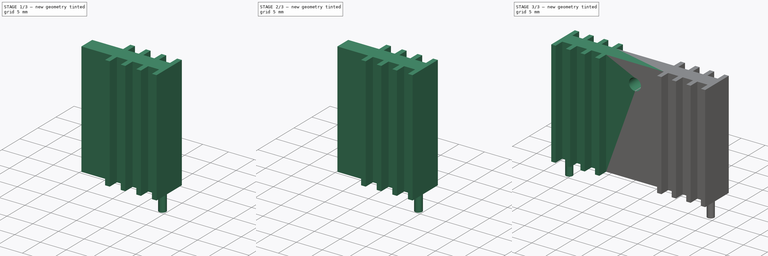
[diagram: build sequence overview — one tinted view per stage of 3, left to right]
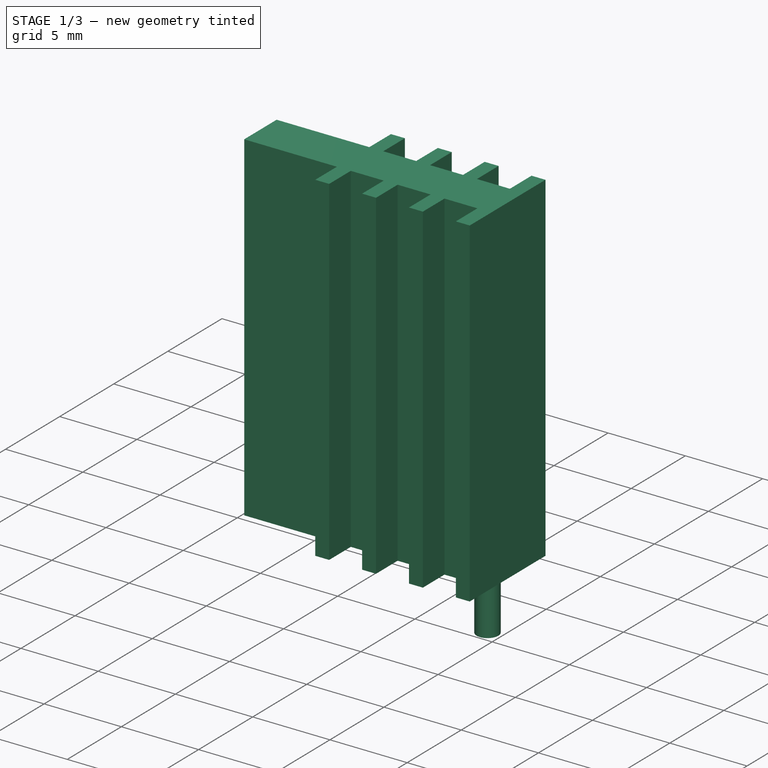
[diagram: stage 1 of 3 — iso view after this stage's code; geometry added in this stage tinted green]
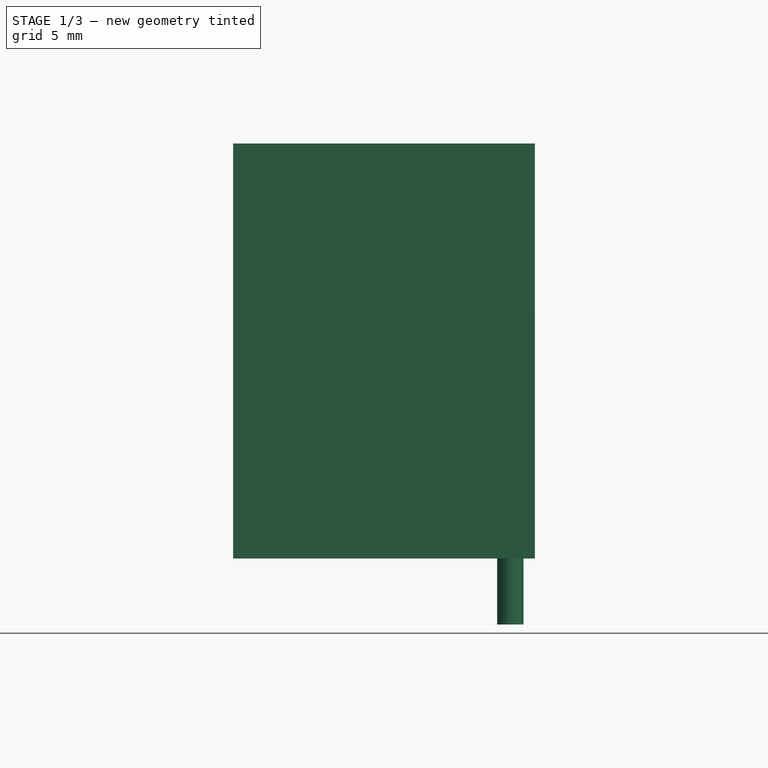
[diagram: stage 1 of 3 — front view after this stage's code; geometry added in this stage tinted green]
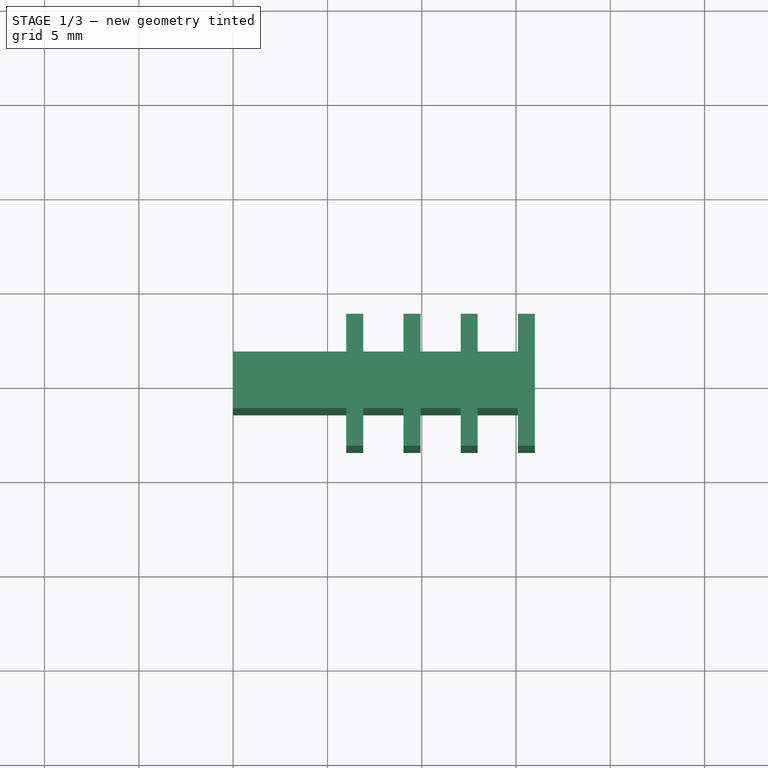
[diagram: stage 1 of 3 — top view after this stage's code; geometry added in this stage tinted green]
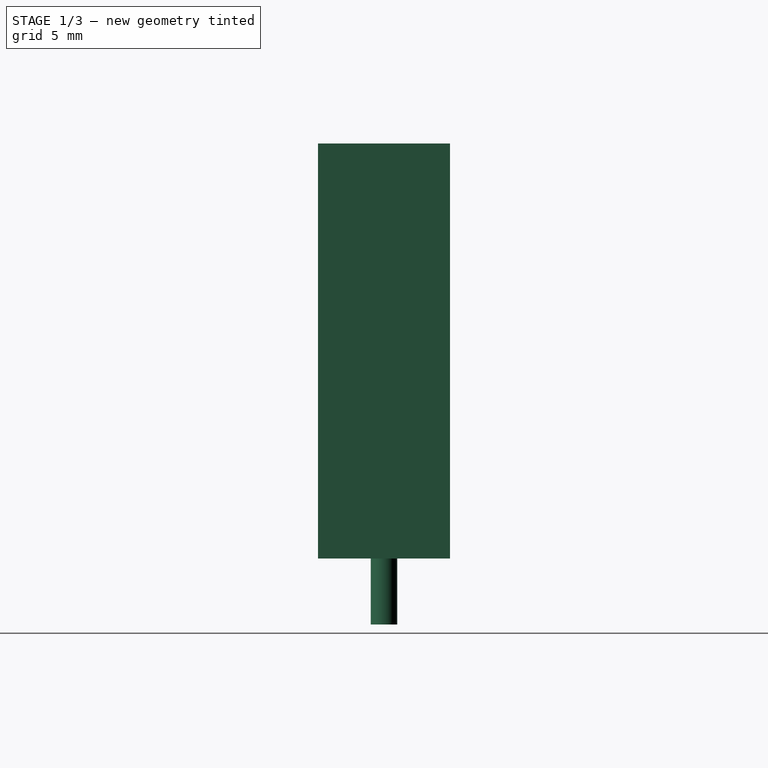
[diagram: stage 1 of 3 — right view after this stage's code; geometry added in this stage tinted green]
FCSTD DOCUMENT  (FreeCAD 1.0R39319 (Git))
Label: heatsink
License: All rights reserved
LicenseURL: https://en.wikipedia.org/wiki/All_rights_reserved
objects: Sketcher::SketchObject×3, PartDesign::Pad×2, PartDesign::Body×2, PartDesign::Boolean×1, PartDesign::Mirrored×1, PartDesign::Hole×1
note: 21 computed .brp shape members not serialized (recipe doc carries the construction recipe); baked Part::Feature solids carry a one-line shape summary decoded from their .brp

FEATURE [Sketcher::SketchObject] Sketch001
  ArcFitTolerance = 1e-06
  AttachmentSupport = -> [XY_Plane001]
  FullyConstrained = false
  MakeInternals = false
  MapMode = 5
  sketch-geometry (30):
    g0: LineSegment StartX=0 StartY=1.5 StartZ=0 EndX=0 EndY=-1.5 EndZ=0
    g1: LineSegment StartX=0 StartY=-1.5 StartZ=0 EndX=16 EndY=-1.5 EndZ=0
    g2: LineSegment StartX=16 StartY=-1.5 StartZ=0 EndX=16 EndY=1.5 EndZ=0
    g3: LineSegment StartX=16 StartY=1.5 StartZ=0 EndX=0 EndY=1.5 EndZ=0
    g4: LineSegment StartX=15.1 StartY=-3.5 StartZ=0 EndX=16 EndY=-3.5 EndZ=0
    g5: LineSegment StartX=16 StartY=-3.5 StartZ=0 EndX=16 EndY=3.5 EndZ=0
    g6: LineSegment StartX=16 StartY=3.5 StartZ=0 EndX=15.1 EndY=3.5 EndZ=0
    g7: LineSegment StartX=15.1 StartY=3.5 StartZ=0 EndX=15.1 EndY=-3.5 EndZ=0
    g8: GeomPoint [constr] X=15.55 Y=0 Z=0
    g9: LineSegment StartX=12.9667 StartY=-3.5 StartZ=0 EndX=12.9667 EndY=3.5 EndZ=0
    g10: LineSegment StartX=12.9667 StartY=3.5 StartZ=0 EndX=12.0667 EndY=3.5 EndZ=0
    g11: LineSegment StartX=12.0667 StartY=3.5 StartZ=0 EndX=12.0667 EndY=-3.5 EndZ=0
    g12: LineSegment StartX=12.0667 StartY=-3.5 StartZ=0 EndX=12.9667 EndY=-3.5 EndZ=0
    g13: GeomPoint [constr] X=12.5167 Y=0 Z=0
    g14: LineSegment StartX=6 StartY=-3.5 StartZ=0 EndX=6.9 EndY=-3.5 EndZ=0
    g15: LineSegment StartX=6.9 StartY=-3.5 StartZ=0 EndX=6.9 EndY=3.5 EndZ=0
    g16: LineSegment StartX=6.9 StartY=3.5 StartZ=0 EndX=6 EndY=3.5 EndZ=0
    g17: LineSegment StartX=6 StartY=3.5 StartZ=0 EndX=6 EndY=-3.5 EndZ=0
    g18: GeomPoint [constr] X=6.45 Y=0 Z=0
    g19: LineSegment StartX=9.03333 StartY=-3.5 StartZ=0 EndX=9.93333 EndY=-3.5 EndZ=0
    g20: LineSegment StartX=9.93333 StartY=-3.5 StartZ=0 EndX=9.93333 EndY=3.5 EndZ=0
    g21: LineSegment StartX=9.93333 StartY=3.5 StartZ=0 EndX=9.03333 EndY=3.5 EndZ=0
    g22: LineSegment StartX=9.03333 StartY=3.5 StartZ=0 EndX=9.03333 EndY=-3.5 EndZ=0
    g23: GeomPoint [constr] X=9.48333 Y=0 Z=0
    g24: LineSegment [constr] StartX=6.9 StartY=3.5 StartZ=0 EndX=9.03333 EndY=3.5 EndZ=0
    g25: LineSegment [constr] StartX=9.93333 StartY=3.5 StartZ=0 EndX=12.0667 EndY=3.5 EndZ=0
    g26: LineSegment [constr] StartX=12.9667 StartY=3.5 StartZ=0 EndX=15.1 EndY=3.5 EndZ=0
    g27: LineSegment [constr] StartX=6 StartY=3.5 StartZ=0 EndX=0 EndY=3.5 EndZ=0
    g28: LineSegment [constr] StartX=1.86262 StartY=1.5 StartZ=0 EndX=1.86262 EndY=0 EndZ=0
    g29: LineSegment [constr] StartX=2.89621 StartY=0 StartZ=0 EndX=2.89621 EndY=-1.5 EndZ=0
  constraints (78):
    c: Coincident(g0,g1)
    c: Coincident(g1,g2)
    c: Coincident(g2,g3)
    c: Coincident(g3,g0)
    c: Vertical(g0)
    c: Vertical(g2)
    c: Horizontal(g1)
    c: Horizontal(g3)
    c: Distance(g0,g2) = 16
    c: Distance(g1,g3) = 3
    c: PointOnObject(g0,g-2)
    c: Coincident(g4,g5)
    c: Coincident(g5,g6)
    c: Coincident(g6,g7)
    c: Coincident(g7,g4)
    c: Horizontal(g4)
    c: Horizontal(g6)
    c: Vertical(g7)
    c: Symmetric(g6,g4,g8)
    c: Distance(g5,g7) = 0.9
    c: Distance(g4,g6) = 7
    c: PointOnObject(g8,g-1)
    c: Tangent(g5,g2)
    c: Coincident(g9,g10)
    c: Coincident(g10,g11)
    c: Coincident(g11,g12)
    c: Coincident(g12,g9)
    c: Vertical(g9)
    c: Vertical(g11)
    c: Horizontal(g10)
    c: Horizontal(g12)
    c: Symmetric(g11,g9,g13)
    c: PointOnObject(g13,g-1)
    c: Equal(g10,g6)
    c: Equal(g9,g7)
    c: Coincident(g14,g15)
    c: Coincident(g15,g16)
    c: Coincident(g16,g17)
    c: Coincident(g17,g14)
    c: Horizontal(g14)
    c: Horizontal(g16)
    c: Vertical(g15)
    c: Vertical(g17)
    c: Symmetric(g16,g14,g18)
    c: PointOnObject(g18,g-1)
    c: Equal(g16,g6)
    c: Coincident(g19,g20)
    c: Coincident(g20,g21)
    c: Coincident(g21,g22)
    c: Coincident(g22,g19)
    c: Horizontal(g19)
    c: Horizontal(g21)
    c: Vertical(g20)
    c: Vertical(g22)
    c: Symmetric(g21,g19,g23)
    c: PointOnObject(g23,g-1)
    c: Equal(g21,g6)
    c: Equal(g20,g7)
    c: Coincident(g24,g15)
    c: Coincident(g24,g21)
    c: Horizontal(g24)
    c: Coincident(g25,g20)
    c: Coincident(g25,g10)
    c: Coincident(g26,g9)
    c: Coincident(g26,g6)
    c: Equal(g26,g25)
    c: Equal(g25,g24)
    c: Coincident(g27,g16)
    c: PointOnObject(g27,g-2)
    c: Horizontal(g27)
    c: DistanceX(g27,g27) = 6
    c: PointOnObject(g28,g3)
    c: PointOnObject(g28,g-1)
    c: Vertical(g28)
    c: PointOnObject(g29,g-1)
    c: PointOnObject(g29,g1)
    c: Vertical(g29)
    c: Equal(g28,g29)
FEATURE [PartDesign::Pad] Pad  label="Body"
  Direction = (0,0,1)
  Length = 22
  Length2 = 10
  Profile = -> Sketch001
  ReferenceAxis = -> Sketch001 [N_Axis]
  Refine = true
  Suppressed = false
  Type = 0
FEATURE [PartDesign::Body] Body001
  AllowCompound = false
  Group = -> [Sketch001,Pad]
  Origin = -> Origin001
  Tip = -> Pad
FEATURE [Sketcher::SketchObject] Sketch
  ArcFitTolerance = 1e-06
  AttachmentSupport = -> [XY_Plane002]
  FullyConstrained = true
  MakeInternals = false
  MapMode = 5
  sketch-geometry (1):
    g0: Circle CenterX=14.7 CenterY=0 CenterZ=0 NormalX=0 NormalY=0 NormalZ=1 AngleXU=0 Radius=0.7
  constraints (3):
    c: Diameter(g0) = 1.4
    c: PointOnObject(g0,g-1)
    c: Distance(g0,g-2) = 14.7
FEATURE [PartDesign::Pad] Pad001
  Direction = (0,0,1)
  Length = 3.5
  Length2 = 10
  Profile = -> Sketch
  ReferenceAxis = -> Sketch [N_Axis]
  Refine = true
  Reversed = true
  Suppressed = false
  Type = 0
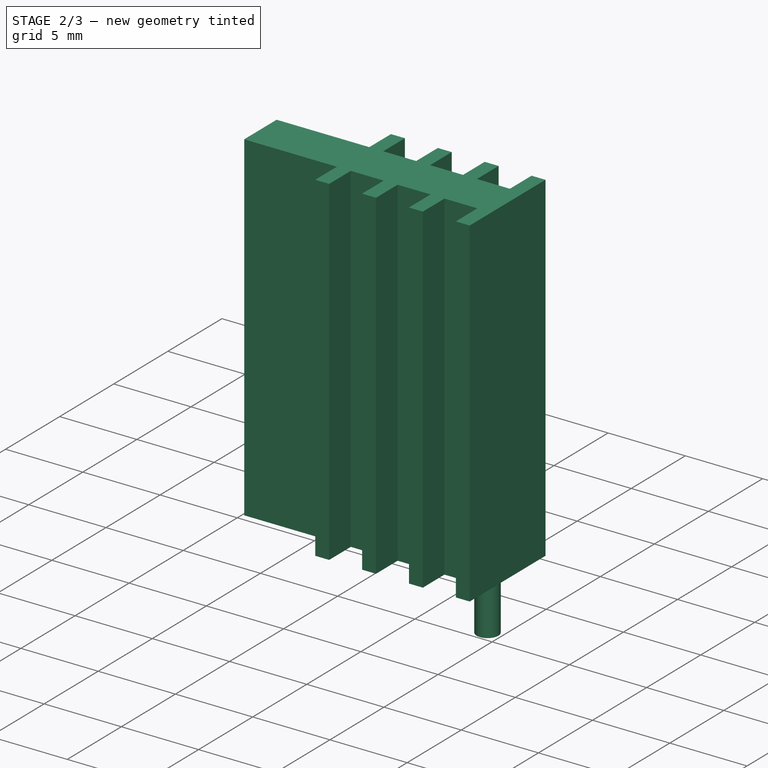
[diagram: stage 2 of 3 — iso view after this stage's code; geometry added in this stage tinted green]
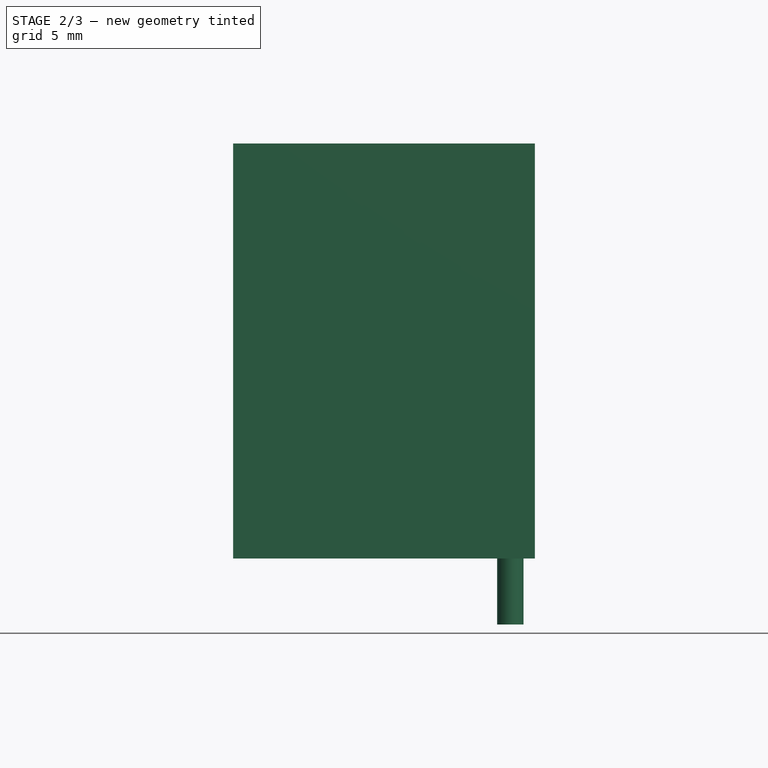
[diagram: stage 2 of 3 — front view after this stage's code; geometry added in this stage tinted green]
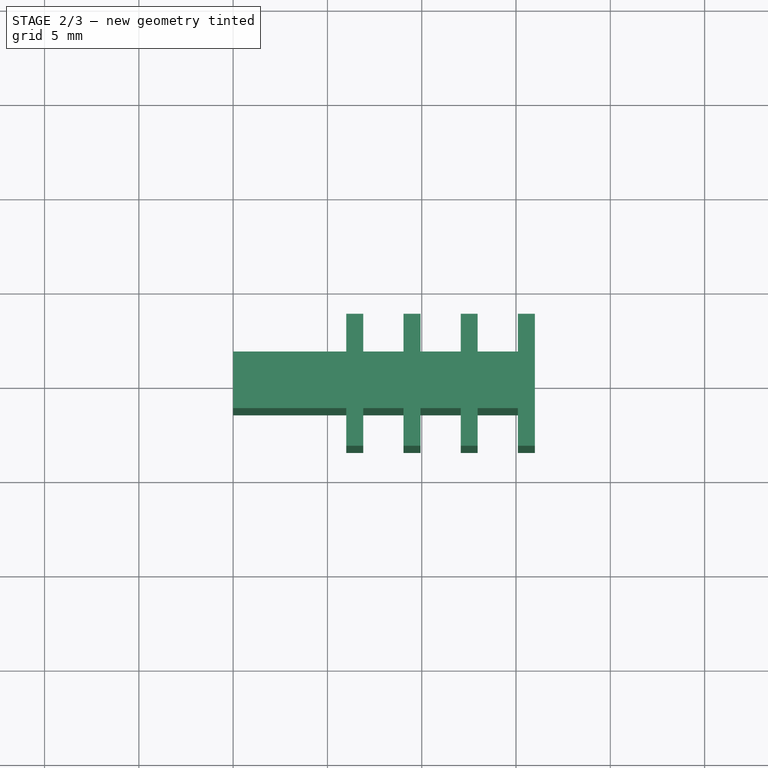
[diagram: stage 2 of 3 — top view after this stage's code; geometry added in this stage tinted green]
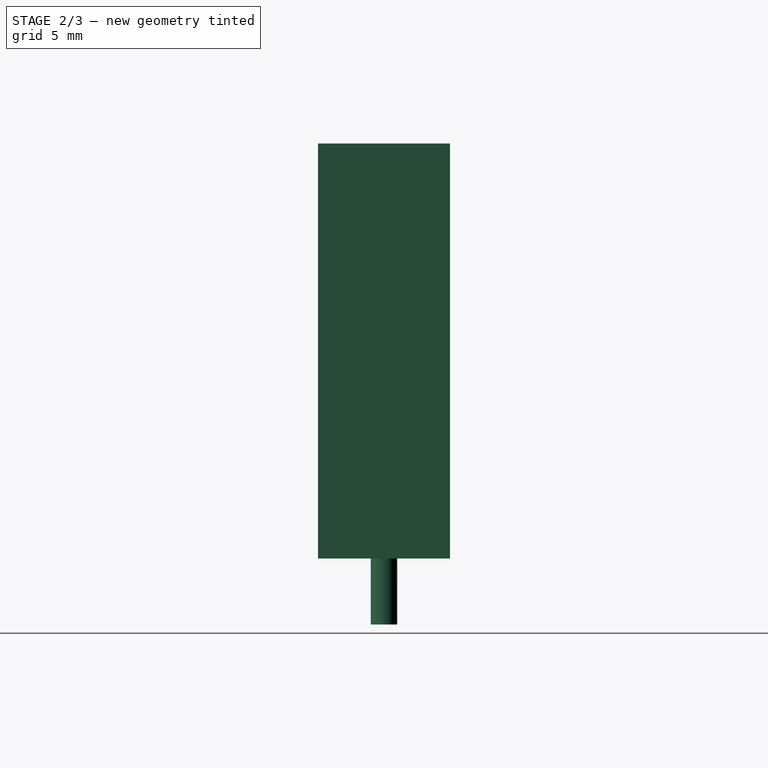
[diagram: stage 2 of 3 — right view after this stage's code; geometry added in this stage tinted green]
FEATURE [PartDesign::Boolean] Boolean
  BaseFeature = -> Pad001
  Group = -> [Body001]
  Refine = true
  Suppressed = false
  Type = 0
  UsePlacement = true
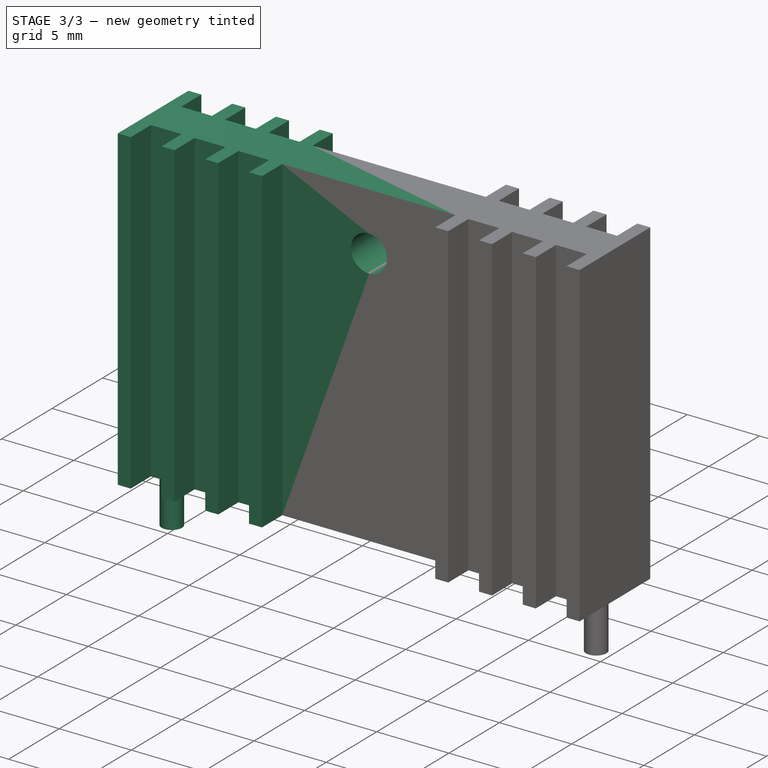
[diagram: stage 3 of 3 — iso view after this stage's code; geometry added in this stage tinted green]
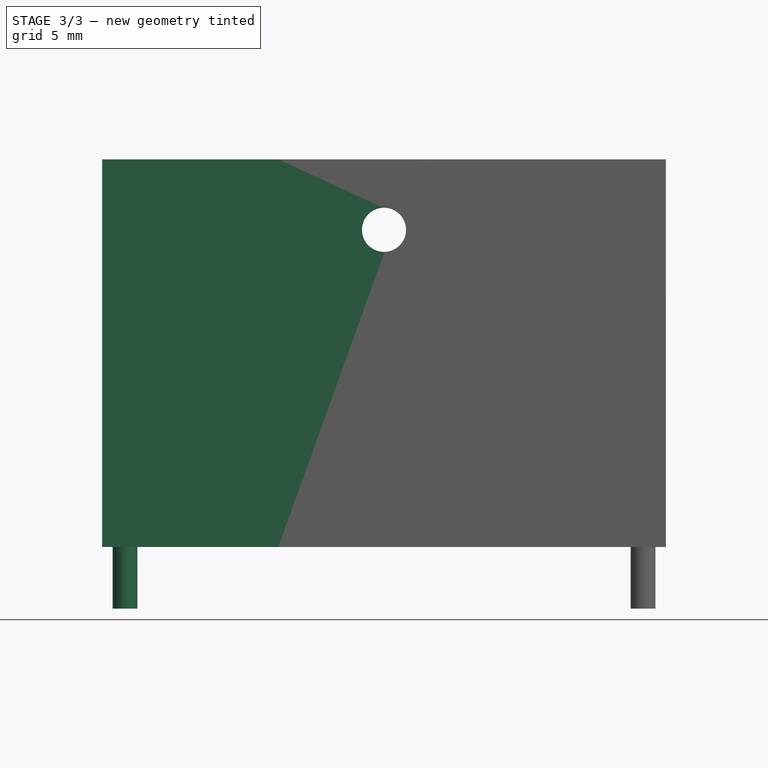
[diagram: stage 3 of 3 — front view after this stage's code; geometry added in this stage tinted green]
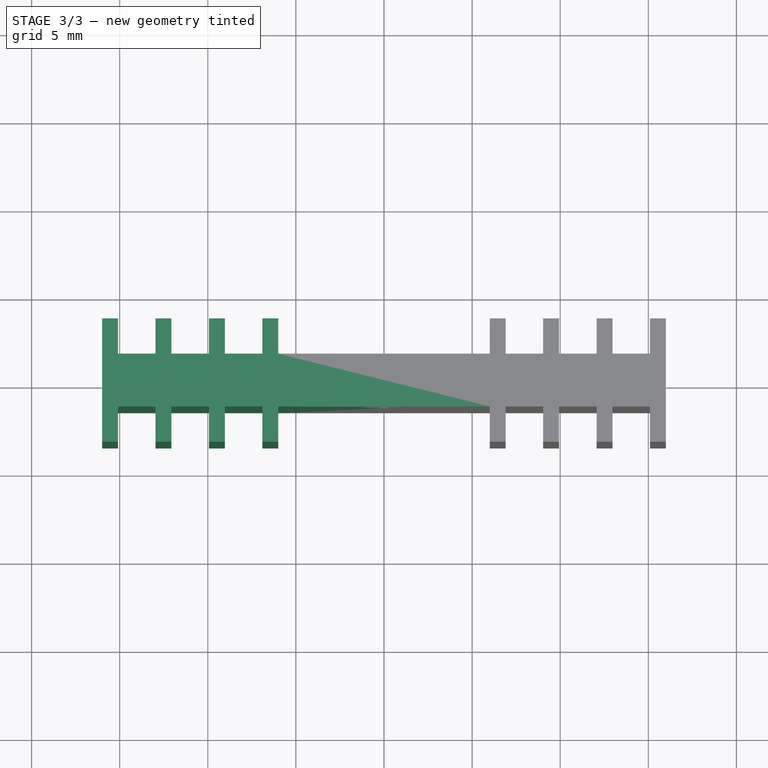
[diagram: stage 3 of 3 — top view after this stage's code; geometry added in this stage tinted green]
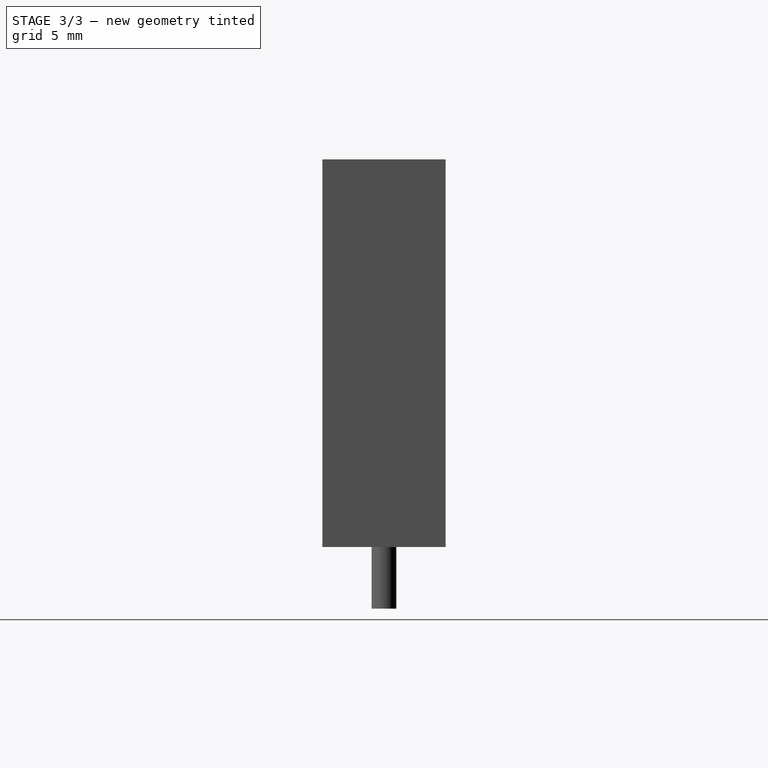
[diagram: stage 3 of 3 — right view after this stage's code; geometry added in this stage tinted green]
FEATURE [PartDesign::Mirrored] Mirrored
  BaseFeature = -> Boolean
  MirrorPlane = -> YZ_Plane002
  Refine = true
  Suppressed = false
  TransformMode = 1
FEATURE [Sketcher::SketchObject] Sketch002
  ArcFitTolerance = 1e-06
  AttachmentSupport = -> [Mirrored]
  FullyConstrained = true
  MakeInternals = false
  MapMode = 5
  Placement = pos=(0,-1.5,0) rot=(1,0,0;1.5708rad)
  sketch-geometry (1):
    g0: Circle CenterX=0 CenterY=18 CenterZ=0 NormalX=0 NormalY=0 NormalZ=1 AngleXU=0 Radius=1.5
  constraints (3):
    c: Diameter(g0) = 3
    c: PointOnObject(g0,g-2)
    c: Distance(g0,g-1) = 18
FEATURE [PartDesign::Hole] Hole
  BaseFeature = -> Mirrored
  CustomThreadClearance = 0
  Depth = 83.8543
  DepthType = 1
  Diameter = 2.5
  DrillForDepth = false
  DrillPoint = 1
  DrillPointAngle = 118
  HoleCutCountersinkAngle = 90
  HoleCutCustomValues = false
  HoleCutDepth = 0
  HoleCutDiameter = 6.1
  HoleCutType = 0
  ModelThread = false
  Profile = -> Sketch002
  Refine = true
  Suppressed = false
  Tapered = false
  TaperedAngle = 90
  ThreadClass = 0
  ThreadDepth = 83.8543
  ThreadDepthType = 0
  ThreadDirection = 0
  ThreadFit = 0
  ThreadSize = 9
  ThreadType = 1
  Threaded = true
  UseCustomThreadClearance = false
FEATURE [PartDesign::Body] Body  label="Pin"
  AllowCompound = false
  Group = -> [Sketch,Pad001,Boolean,Mirrored,Sketch002,Hole]
  Origin = -> Origin002
  Tip = -> Hole
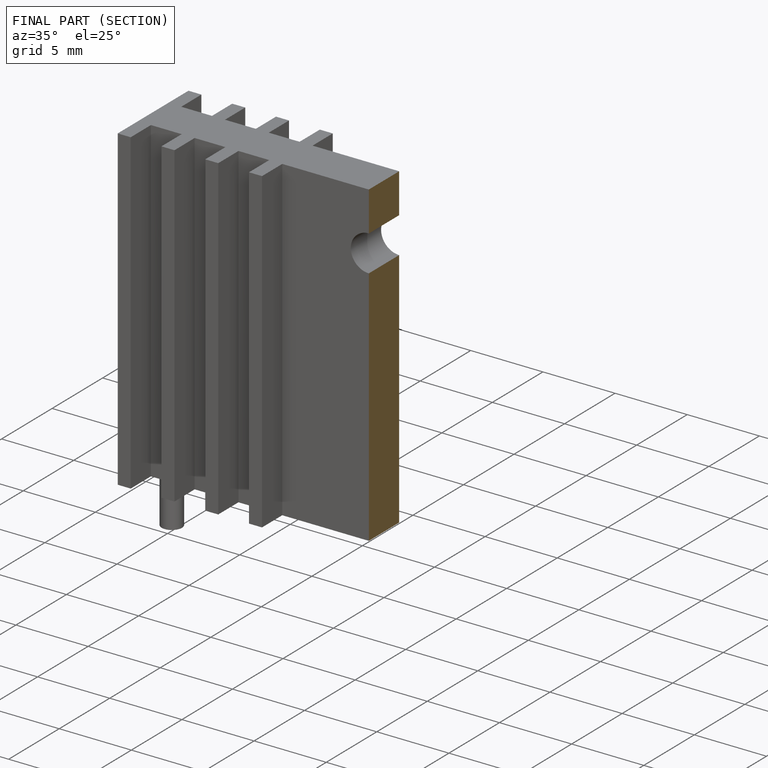
[diagram: finished part — half-section view (interior)]
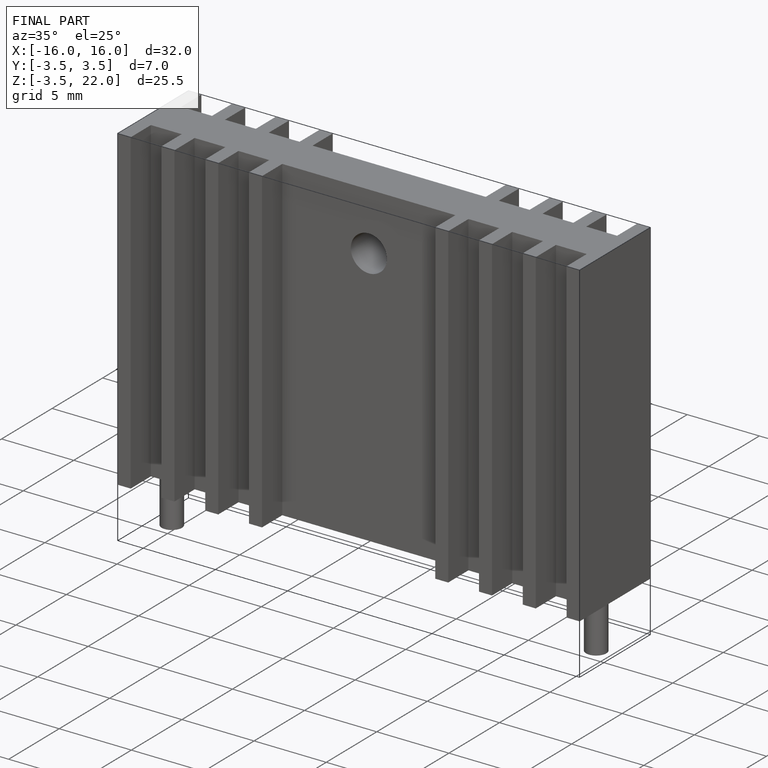
[diagram: finished part — iso view with bounding-box wireframe]
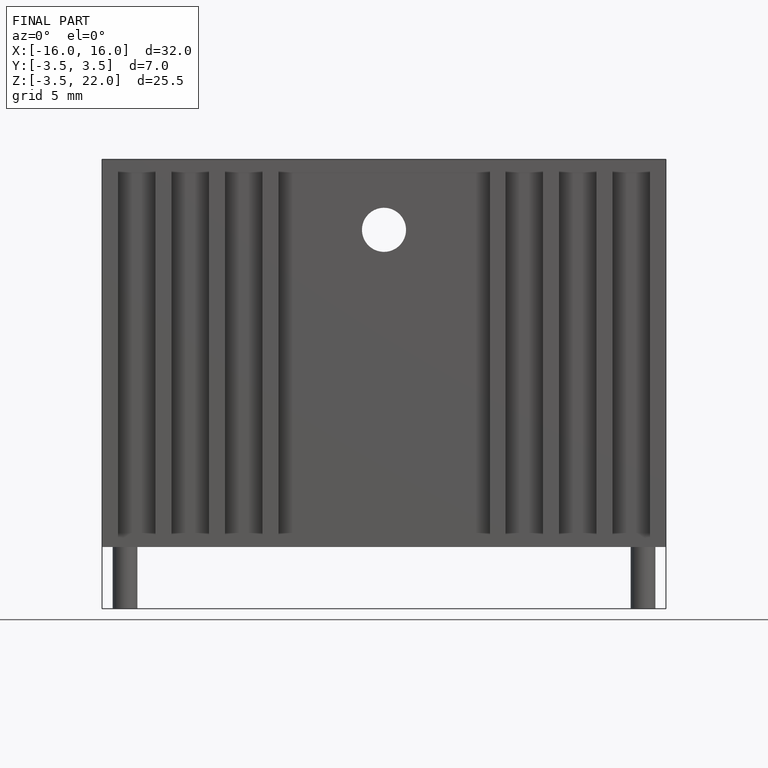
[diagram: finished part — front view with bounding-box wireframe]
